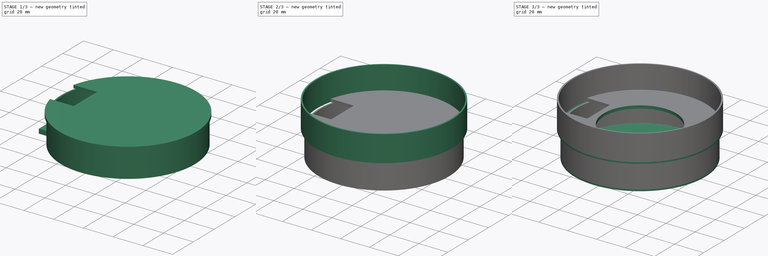
[diagram: build sequence overview — one tinted view per stage of 3, left to right]
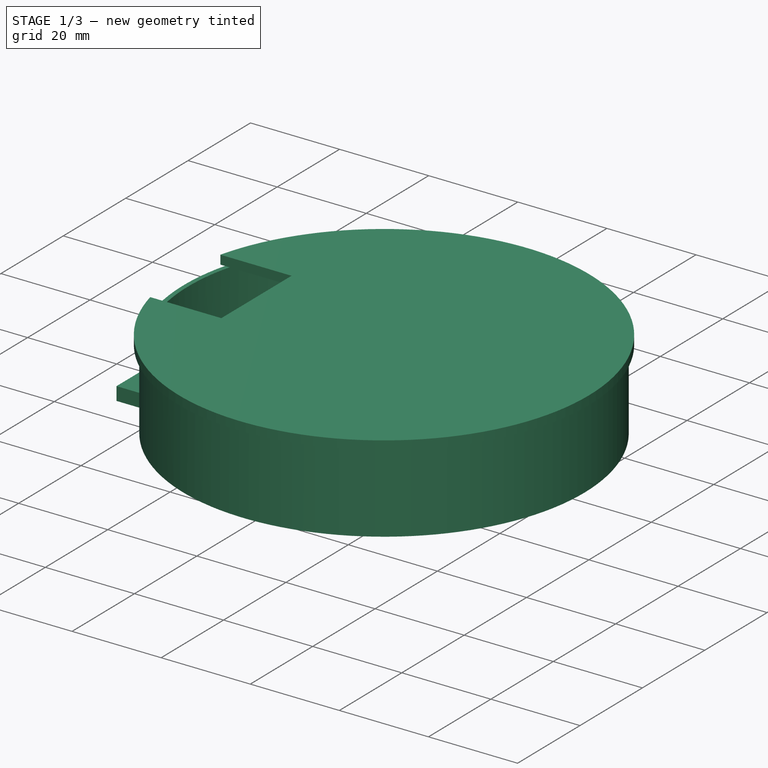
[diagram: stage 1 of 3 — iso view after this stage's code; geometry added in this stage tinted green]
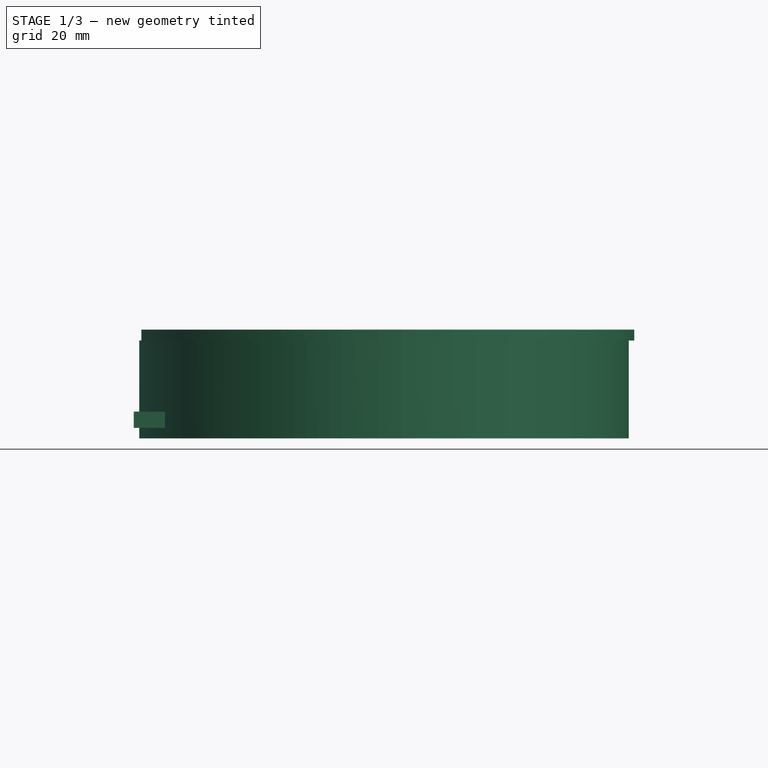
[diagram: stage 1 of 3 — front view after this stage's code; geometry added in this stage tinted green]
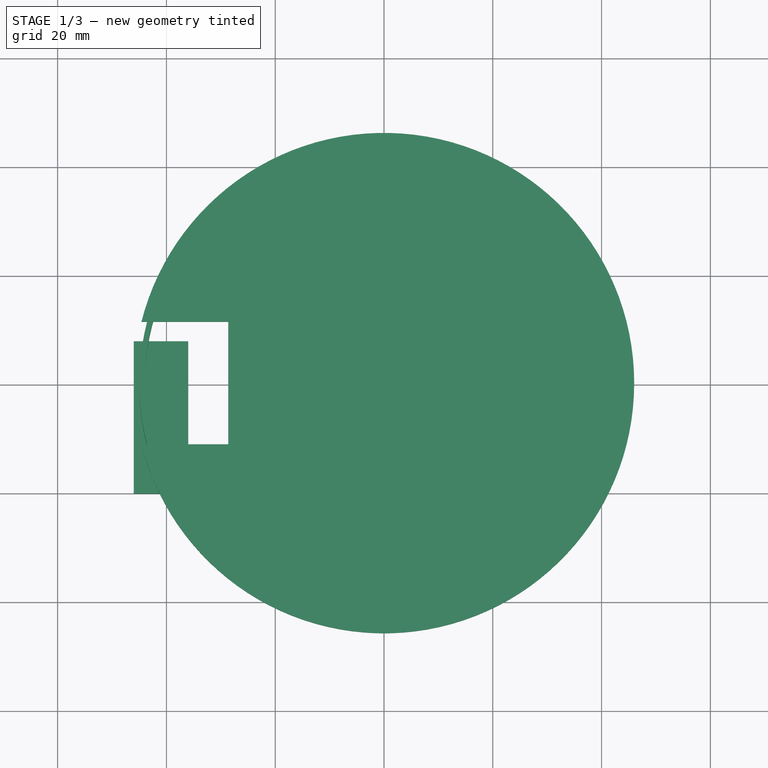
[diagram: stage 1 of 3 — top view after this stage's code; geometry added in this stage tinted green]
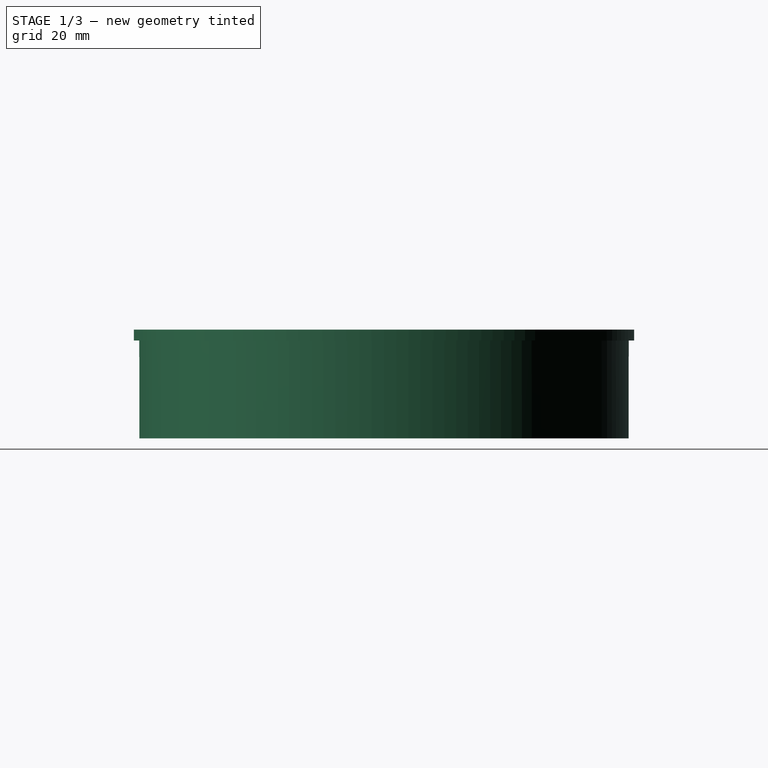
[diagram: stage 1 of 3 — right view after this stage's code; geometry added in this stage tinted green]
FCSTD DOCUMENT  (FreeCAD 0.14R3702 (Git))
Label: Bulkhead
License: CC-BY 3.0
LicenseURL: http://creativecommons.org/licenses/by/3.0/
objects: Sketcher::SketchObject×7, PartDesign::Pad×6, Part::Feature×2, Part::Cut×1, PartDesign::Pocket×1
note: 24 computed .brp shape members not serialized (recipe doc carries the construction recipe); baked Part::Feature solids carry a one-line shape summary decoded from their .brp

FEATURE [Sketcher::SketchObject] Sketch
  Placement = pos=(0,0,0) rot=(1,0,0;3.14159rad)
  sketch-geometry (5):
    g0: LineSegment StartX=-44.6031 StartY=11.25 StartZ=0 EndX=-28.6277 EndY=11.25 EndZ=0
    g1: LineSegment StartX=-28.6277 StartY=11.25 StartZ=0 EndX=-28.6277 EndY=-11.25 EndZ=0
    g2: LineSegment StartX=-28.6277 StartY=-11.25 StartZ=0 EndX=-44.6031 EndY=-11.25 EndZ=0
    g3: ArcOfCircle CenterX=0 CenterY=0 CenterZ=0 NormalX=0 NormalY=0 NormalZ=1 Radius=46 StartAngle=3.38866 EndAngle=9.17771
    g4: LineSegment [constr] StartX=-43.1277 StartY=0 StartZ=0 EndX=-43.1277 EndY=-16 EndZ=0
  constraints (18):
    c: Coincident(g0,g1)
    c: Coincident(g1,g2)
    c: Horizontal(g0)
    c: Horizontal(g2)
    c: Vertical(g1)
    c: Radius(g3) = 46
    c: PointOnObject(g0,g3)
    c: PointOnObject(g2,g3)
    c: DistanceY(g1) = -22.5
    c: Coincident(g0,g3)
    c: Coincident(g2,g3)
    c: Vertical(g4)
    c: DistanceY(g4) = -16
    c: PointOnObject(g4,g-1)
    c: PointOnObject(g4,g3)
    c: Distance(g4,g1) = 14.5
    c: Distance(g-1,g0) = 11.25
    c: Coincident(g-1,g3)
FEATURE [PartDesign::Pad] Pad
  Length = 2
  Length2 = 100
  Placement = pos=(0,0,0) rot=(1,0,0;3.14159rad)
  Sketch = -> Sketch
  Type = 0
FEATURE [Part::Feature] Part__Feature  label="modelcraft micro servo MC -1812"
  Placement = pos=(-34.8,-6,-12) rot=(-0.57735,-0.57735,0.57735;2.0944rad)
  shape: bbox 11.5 x 32 x 28.01 mm, 115 faces (baked)
FEATURE [Part::Feature] Part__Feature001  label="modelcraft micro servo MC -1823"
  Placement = pos=(-35,-6,-12) rot=(-0.57735,-0.57735,0.57735;2.0944rad)
  shape: bbox 26.35 x 26.35 x 4.5 mm, 31 faces (baked)
FEATURE [Sketcher::SketchObject] Sketch001  label="under"
  Placement = pos=(0,0,-2) rot=(1,0,0;3.14159rad)
  Support = -> Pad [Face6]
  sketch-geometry (2):
    g0: Circle CenterX=0 CenterY=0 CenterZ=0 NormalX=0 NormalY=0 NormalZ=1 Radius=45
    g1: Circle CenterX=0 CenterY=0 CenterZ=0 NormalX=0 NormalY=0 NormalZ=1 Radius=44
  constraints (4):
    c: Coincident(g0,g-1)
    c: Radius(g1) = 44
    c: Coincident(g1,g-1)
    c: Radius(g0) = 45
FEATURE [PartDesign::Pad] Pad001
  Length = 18
  Length2 = 100
  Placement = pos=(0,0,0) rot=(1,0,0;3.14159rad)
  Sketch = -> Sketch001
  Type = 0
FEATURE [Sketcher::SketchObject] Sketch003
  Placement = pos=(-46,0,0) rot=(0.57735,0.57735,0.57735;2.0944rad)
  sketch-geometry (4):
    g0: LineSegment StartX=7.94589 StartY=-15.0763 StartZ=0 EndX=-20.0541 EndY=-15.0763 EndZ=0
    g1: LineSegment StartX=-20.0541 StartY=-15.0763 StartZ=0 EndX=-20.0541 EndY=-18.0763 EndZ=0
    g2: LineSegment StartX=-20.0541 StartY=-18.0763 StartZ=0 EndX=7.94589 EndY=-18.0763 EndZ=0
    g3: LineSegment StartX=7.94589 StartY=-18.0763 StartZ=0 EndX=7.94589 EndY=-15.0763 EndZ=0
  constraints (10):
    c: Coincident(g0,g1)
    c: Coincident(g1,g2)
    c: Coincident(g2,g3)
    c: Coincident(g3,g0)
    c: Horizontal(g0)
    c: Horizontal(g2)
    c: Vertical(g1)
    c: Vertical(g3)
    c: DistanceY(g1) = -3
    c: DistanceX(g0) = -28
FEATURE [PartDesign::Pad] Pad003
  Length = 10
  Length2 = 100
  Placement = pos=(-46,0,0) rot=(0.57735,0.57735,0.57735;2.0944rad)
  Sketch = -> Sketch003
  Type = 0
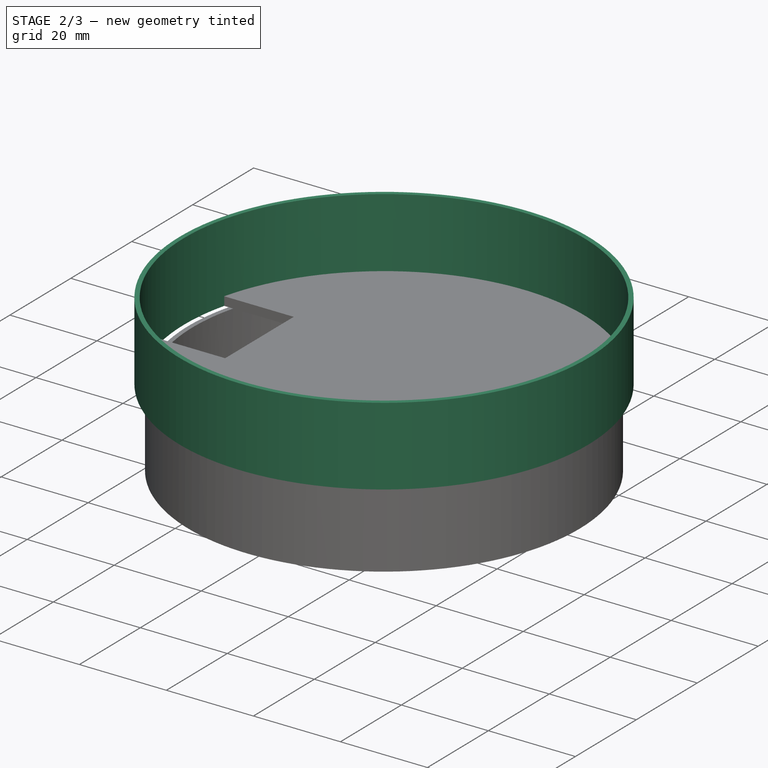
[diagram: stage 2 of 3 — iso view after this stage's code; geometry added in this stage tinted green]
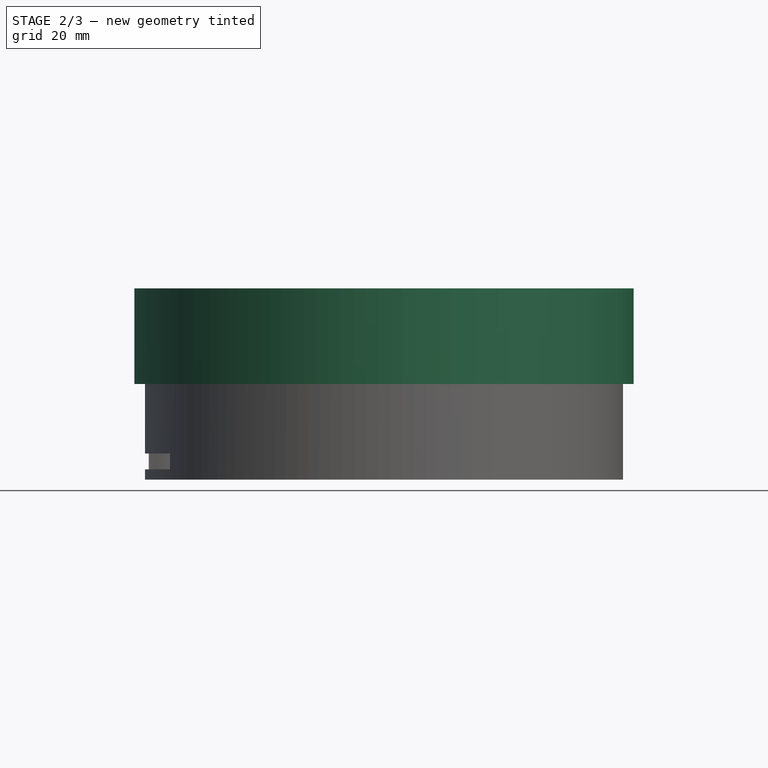
[diagram: stage 2 of 3 — front view after this stage's code; geometry added in this stage tinted green]
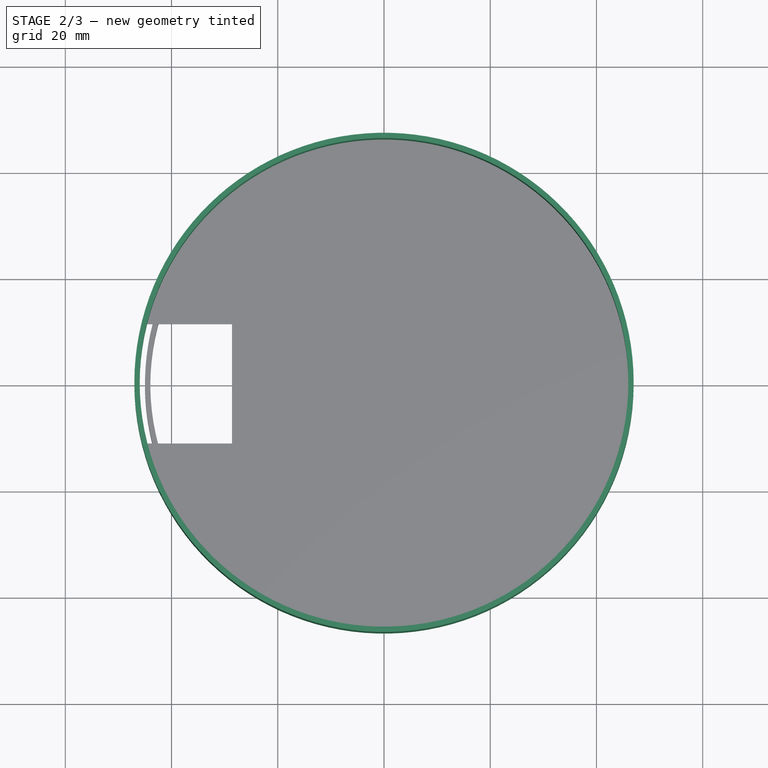
[diagram: stage 2 of 3 — top view after this stage's code; geometry added in this stage tinted green]
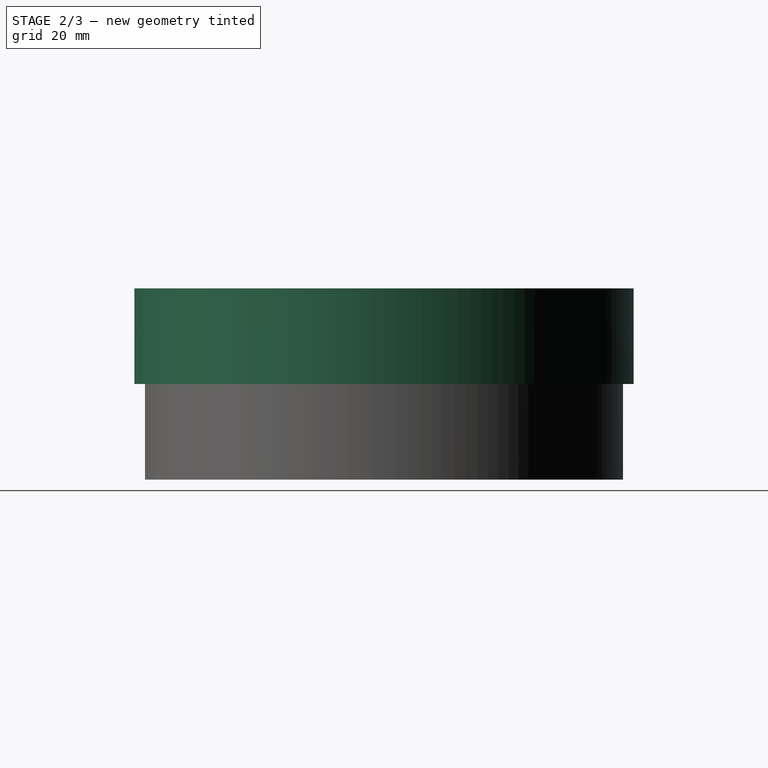
[diagram: stage 2 of 3 — right view after this stage's code; geometry added in this stage tinted green]
FEATURE [Part::Cut] Cut
  Base = -> Pad001
  Tool = -> Pad003
FEATURE [Sketcher::SketchObject] Sketch004
  Support = -> Cut [Face4]
  sketch-geometry (2):
    g0: Circle CenterX=0 CenterY=0 CenterZ=0 NormalX=0 NormalY=0 NormalZ=1 Radius=46
    g1: Circle CenterX=0 CenterY=0 CenterZ=0 NormalX=0 NormalY=0 NormalZ=1 Radius=47
  constraints (4):
    c: Radius(g0) = 46
    c: Coincident(g0,g-1)
    c: Coincident(g1,g-1)
    c: Radius(g1) = 47
FEATURE [PartDesign::Pad] Pad004
  Length = 16
  Length2 = 2
  Sketch = -> Sketch004
  Type = 4
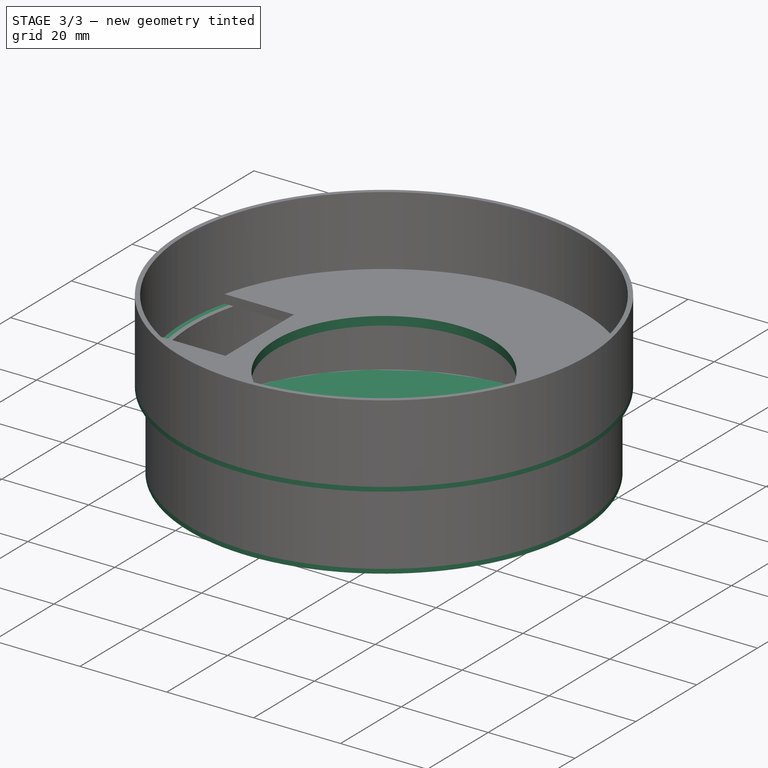
[diagram: stage 3 of 3 — iso view after this stage's code; geometry added in this stage tinted green]
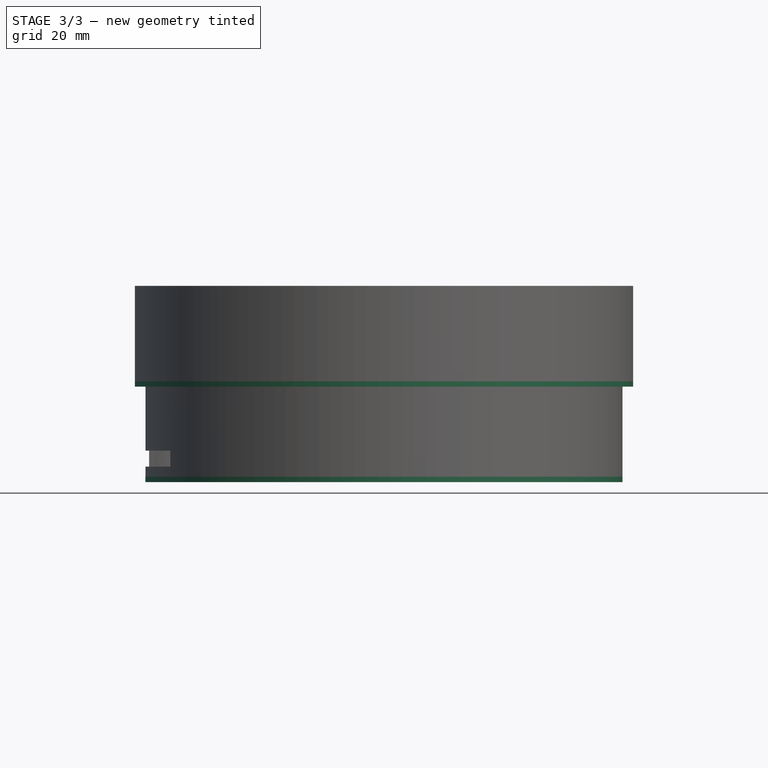
[diagram: stage 3 of 3 — front view after this stage's code; geometry added in this stage tinted green]
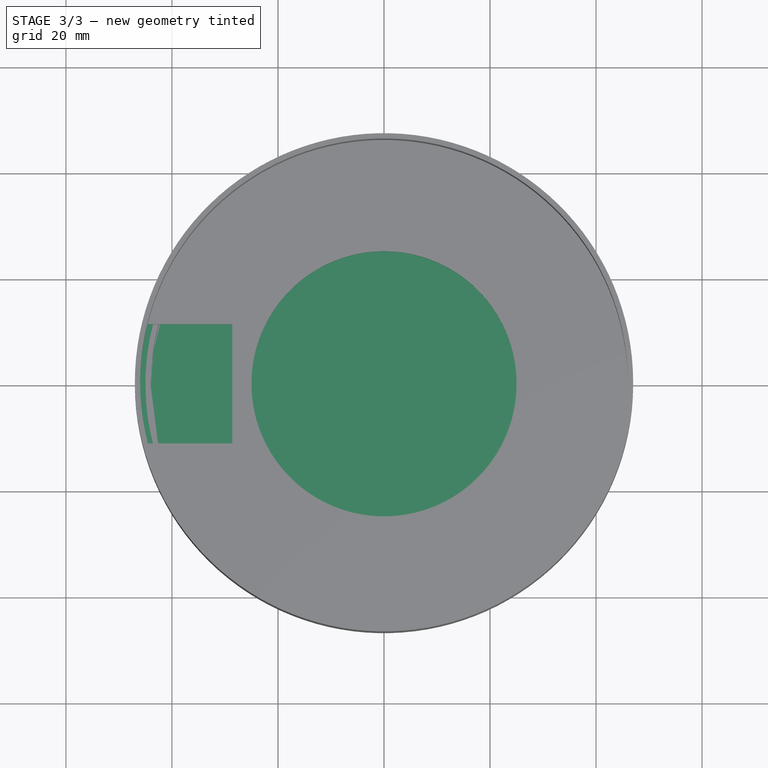
[diagram: stage 3 of 3 — top view after this stage's code; geometry added in this stage tinted green]
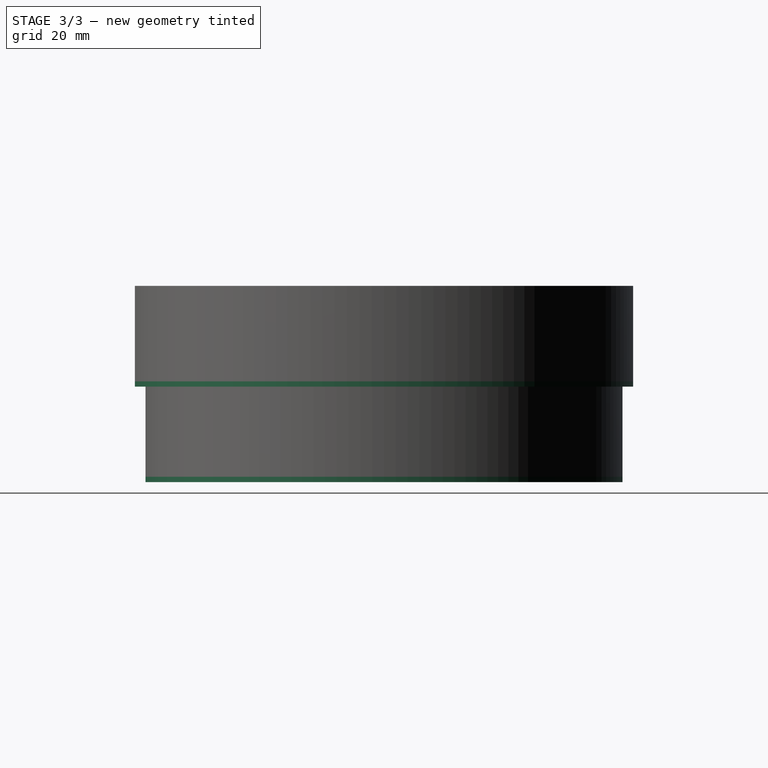
[diagram: stage 3 of 3 — right view after this stage's code; geometry added in this stage tinted green]
FEATURE [Sketcher::SketchObject] Sketch005
  Placement = pos=(0,0,-2) rot=(1,0,0;3.14159rad)
  Support = -> Pad004 [Face2]
  sketch-geometry (2):
    g0: Circle CenterX=0 CenterY=0 CenterZ=0 NormalX=0 NormalY=0 NormalZ=1 Radius=45
    g1: Circle CenterX=0 CenterY=0 CenterZ=0 NormalX=0 NormalY=0 NormalZ=1 Radius=47
  constraints (4):
    c: Coincident(g0,g-1)
    c: Radius(g0) = 45
    c: Coincident(g1,g-1)
    c: Radius(g1) = 47
FEATURE [PartDesign::Pad] Pad005
  Length = 1
  Length2 = 2
  Sketch = -> Sketch005
  Type = 0
FEATURE [Sketcher::SketchObject] Sketch006
  Placement = pos=(0,0,-20) rot=(1,0,0;3.14159rad)
  Support = -> Pad005 [Face15]
  sketch-geometry (1):
    g0: Circle CenterX=0 CenterY=0 CenterZ=0 NormalX=0 NormalY=0 NormalZ=1 Radius=45
  constraints (2):
    c: Coincident(g0,g-1)
    c: Radius(g0) = 45
FEATURE [PartDesign::Pad] Pad006
  Length = 1
  Length2 = 2
  Sketch = -> Sketch006
  Type = 0
FEATURE [Sketcher::SketchObject] Sketch007
  Support = -> Pad006 [Face8]
  sketch-geometry (1):
    g0: Circle CenterX=0 CenterY=0 CenterZ=0 NormalX=0 NormalY=0 NormalZ=1 Radius=25
  constraints (2):
    c: Coincident(g0,g-1)
    c: Radius(g0) = 25
FEATURE [PartDesign::Pocket] Pocket
  Length = 5
  Sketch = -> Sketch007
  Type = 0
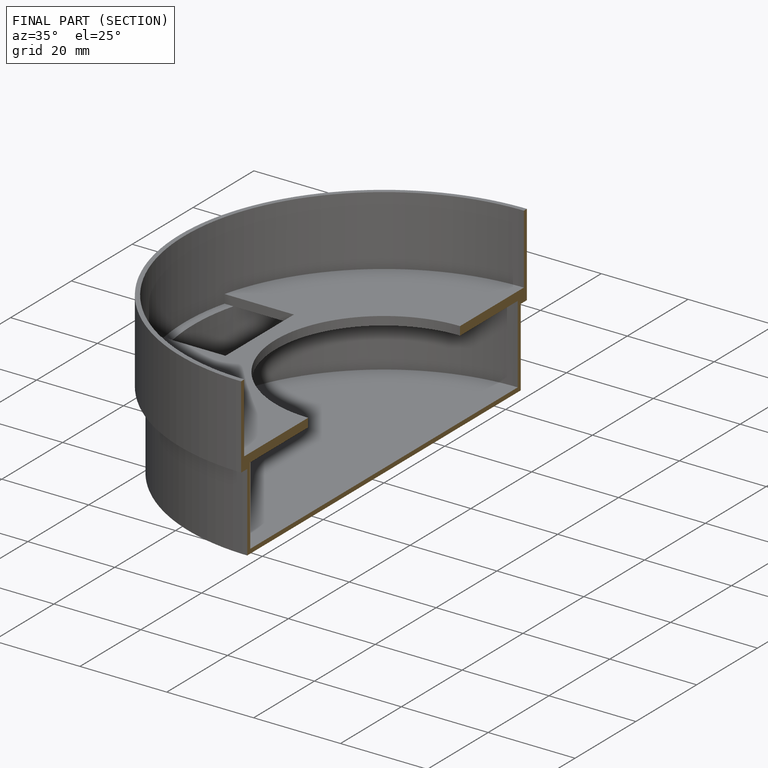
[diagram: finished part — half-section view (interior)]
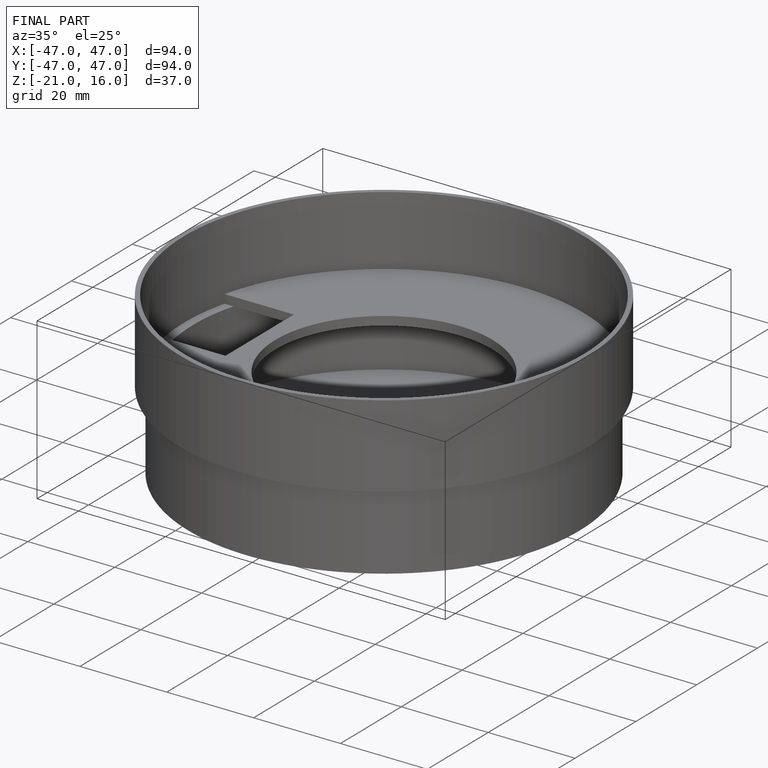
[diagram: finished part — iso view with bounding-box wireframe]
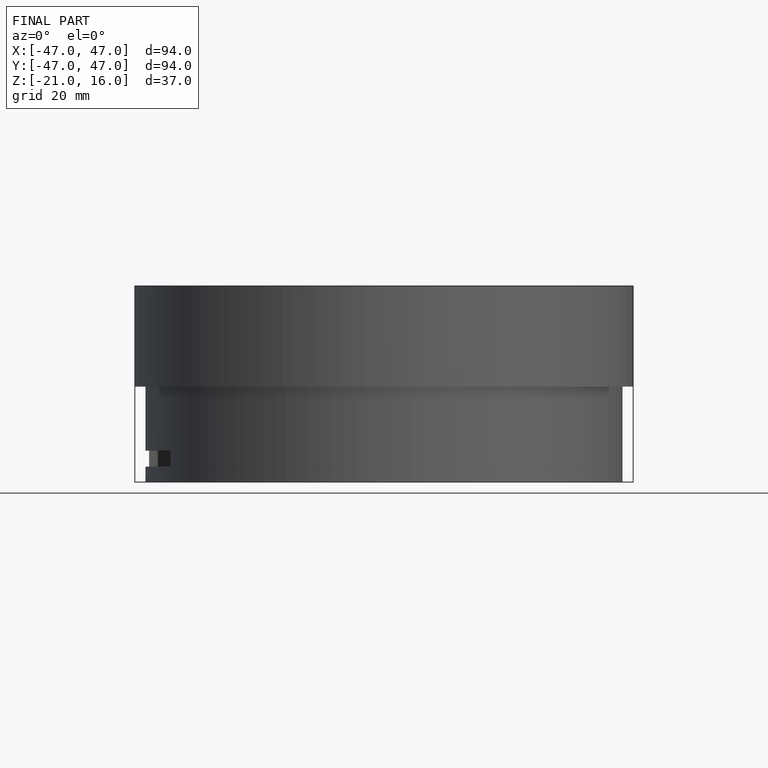
[diagram: finished part — front view with bounding-box wireframe]
